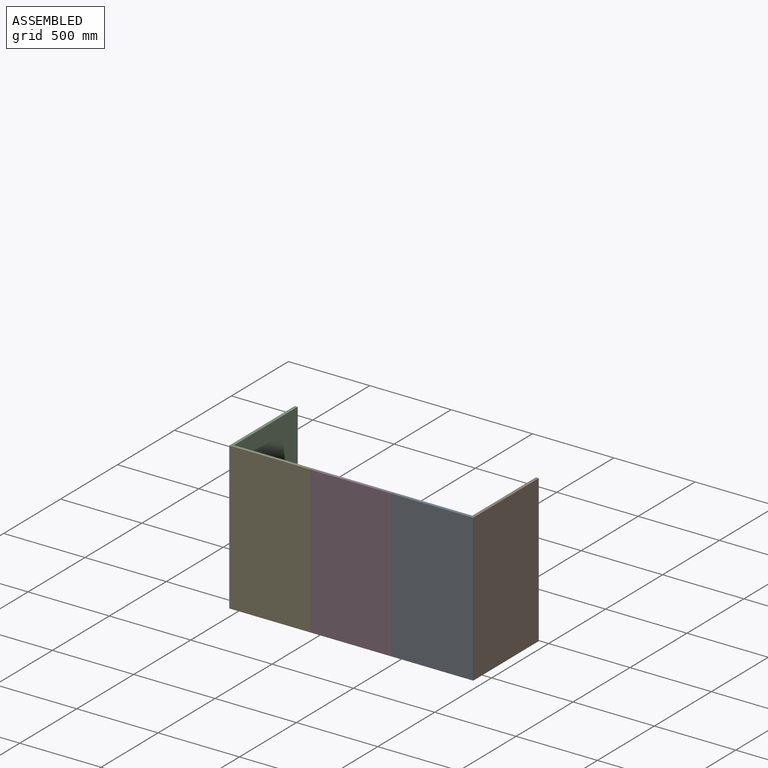
[diagram: assembled view]
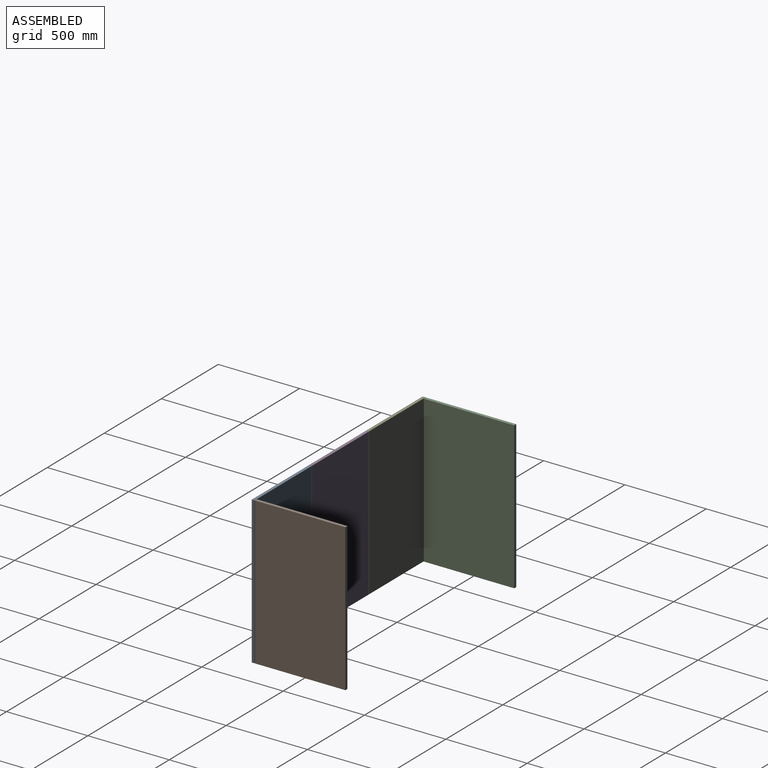
[diagram: assembled view, second angle]
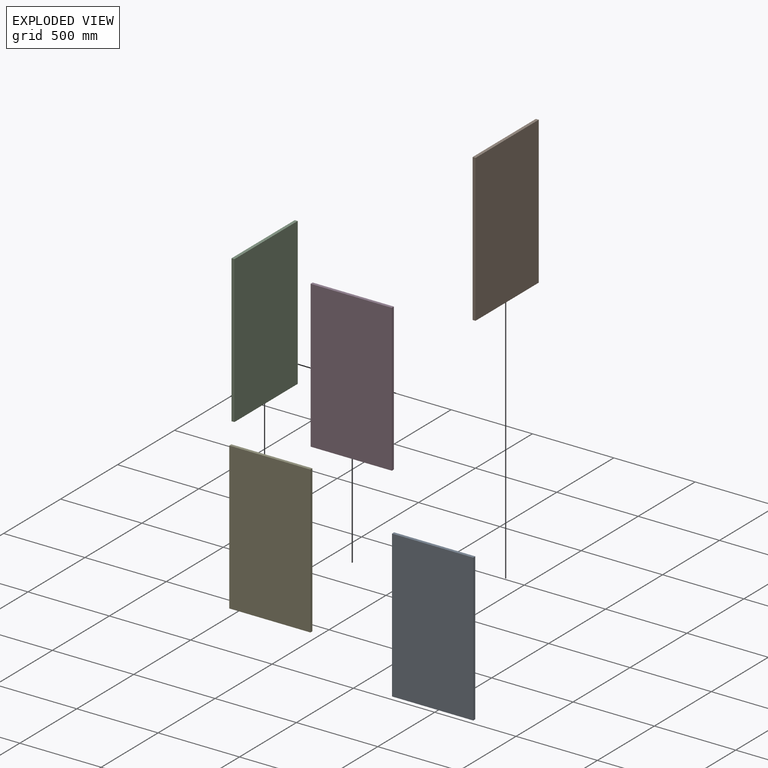
[diagram: exploded view]
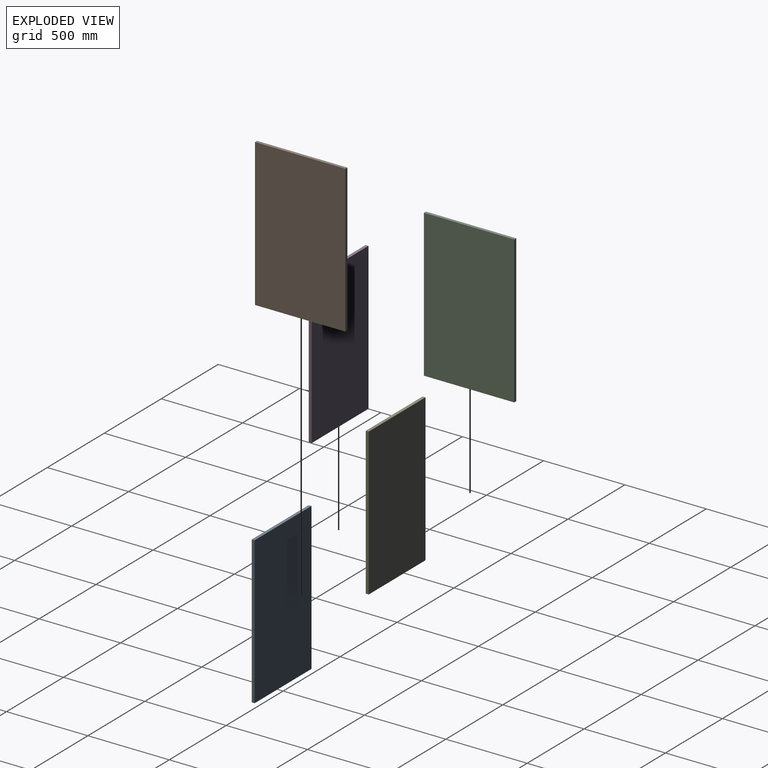
[diagram: exploded view, second angle]
ASSEMBLY  parts=5 mates=4
PART A: 6 faces, bbox 499x18x905 mm
  f0: plane 499x18mm, normal (0,0,1), area 8982mm2, adj f1,f3,f4,f5
  f1: plane 905x18mm, normal (-1,0,0), area 16290mm2, adj f0,f2,f4,f5
  f2: plane 499x18mm, normal (0,0,-1), area 8982mm2, adj f1,f3,f4,f5
  f3: plane 905x18mm, normal (1,0,0), area 16290mm2, adj f0,f2,f4,f5
  f4: plane 905x499mm, normal (0,-1,0), area 451595mm2, adj f0,f1,f2,f3
  f5: plane 905x499mm, normal (0,1,0), area 451595mm2, adj f0,f1,f2,f3
PART B: 6 faces, bbox 555.5x18x905 mm
  f0: plane 555.5x18mm, normal (0,0,1), area 9999mm2, adj f1,f3,f4,f5
  f1: plane 905x18mm, normal (-1,0,0), area 16290mm2, adj f0,f2,f4,f5
  f2: plane 555.5x18mm, normal (0,0,-1), area 9999mm2, adj f1,f3,f4,f5
  f3: plane 905x18mm, normal (1,0,0), area 16290mm2, adj f0,f2,f4,f5
  f4: plane 905x555.5mm, normal (0,-1,0), area 502727.5mm2, adj f0,f1,f2,f3
  f5: plane 905x555.5mm, normal (0,1,0), area 502727.5mm2, adj f0,f1,f2,f3
PART C: same geometry as B
PART D: same geometry as A
PART E: same geometry as A
PLACE A at identity fixed
PLACE B rot(axis=(0,0,1),90deg) t=(231.5,279.75,0)mm
PLACE C rot(axis=(0,0,-1),90deg) t=(-1232.5,279.75,0)mm
PLACE D t=(-500.5,0,0)mm
PLACE E t=(-1001,0,0)mm
MATE fastened A.f0 <-> B.f0  axis (0,0,1) through (249.5,0,452.5)mm
MATE fastened D.f0 <-> E.f0  axis (0,0,1) through (-750,-18,452.5)mm
MATE fastened C.f0 <-> E.f0  axis (0,0,1) through (-1250.5,2,452.5)mm
MATE fastened A.f0 <-> D.f0  axis (0,0,1) through (-249.5,-18,452.5)mm
